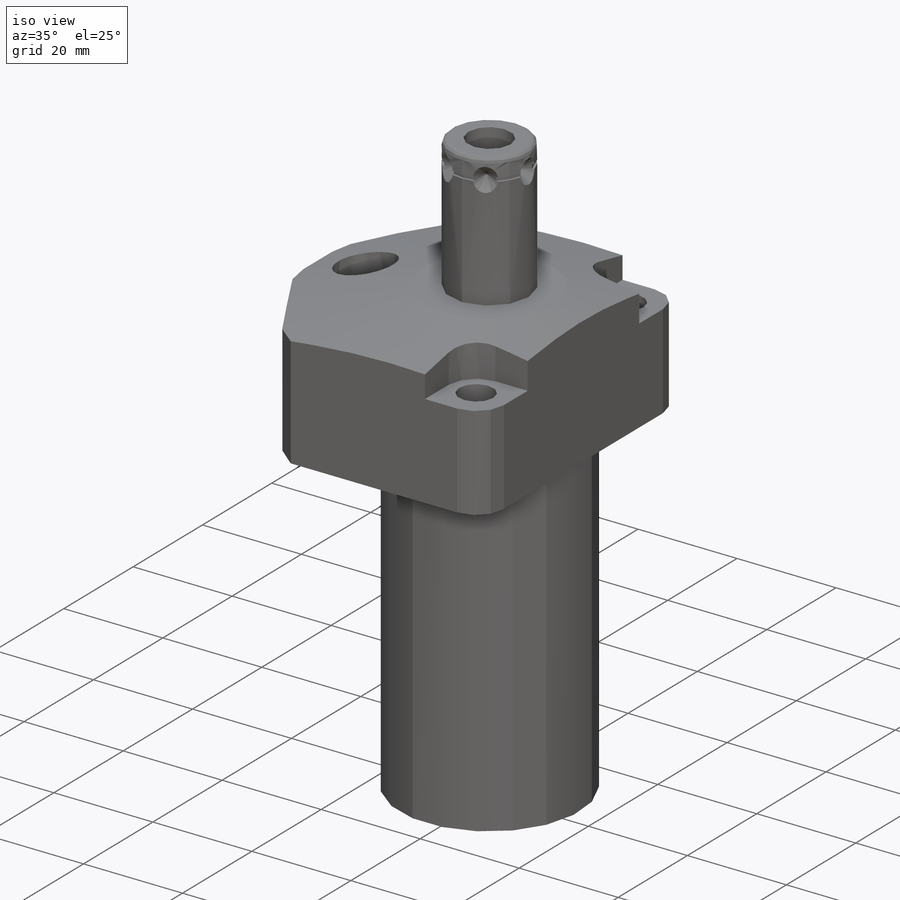
[diagram: iso view]
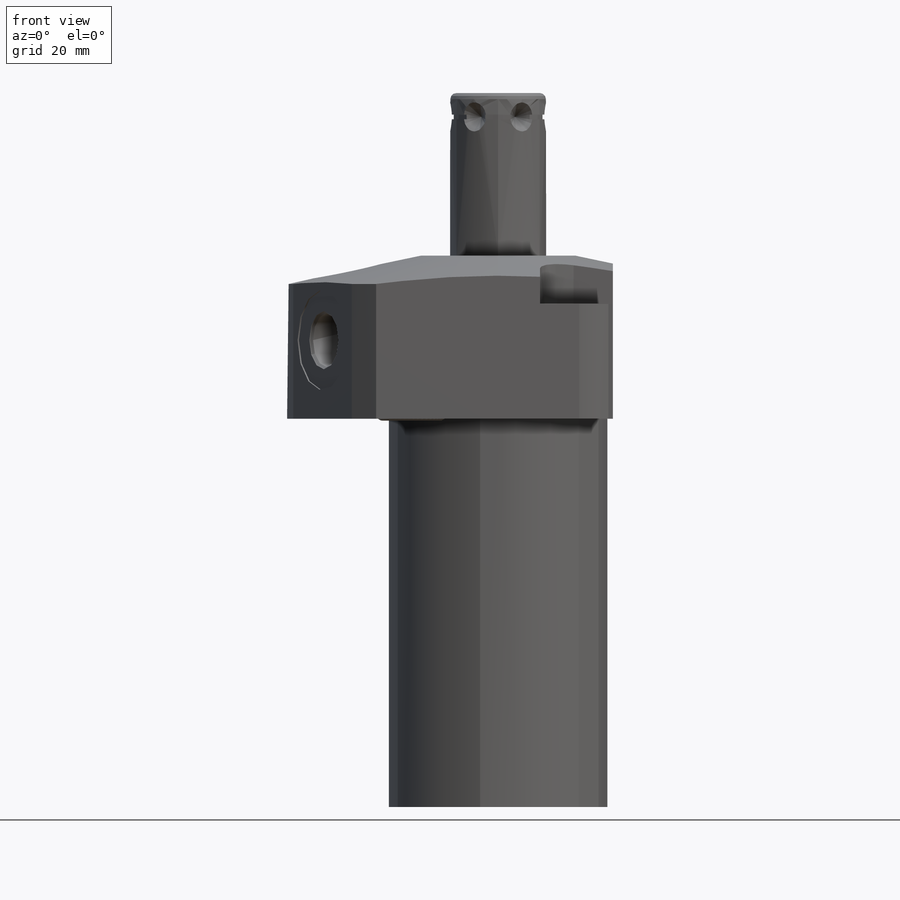
[diagram: front view]
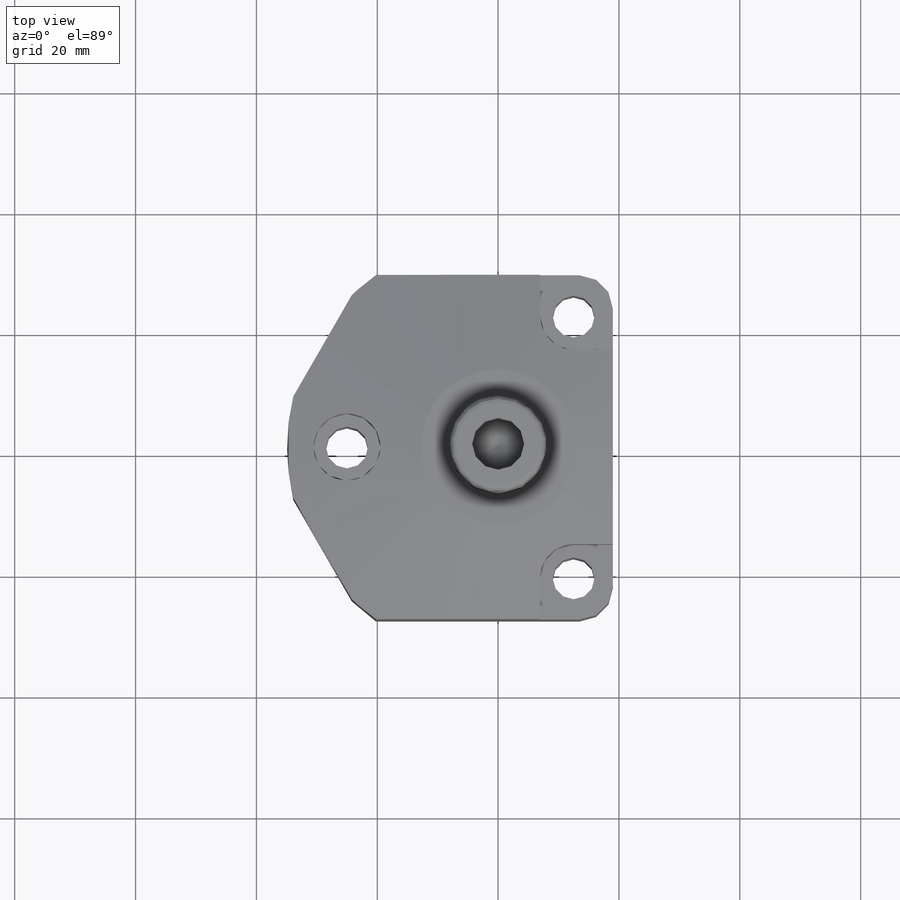
[diagram: top view]
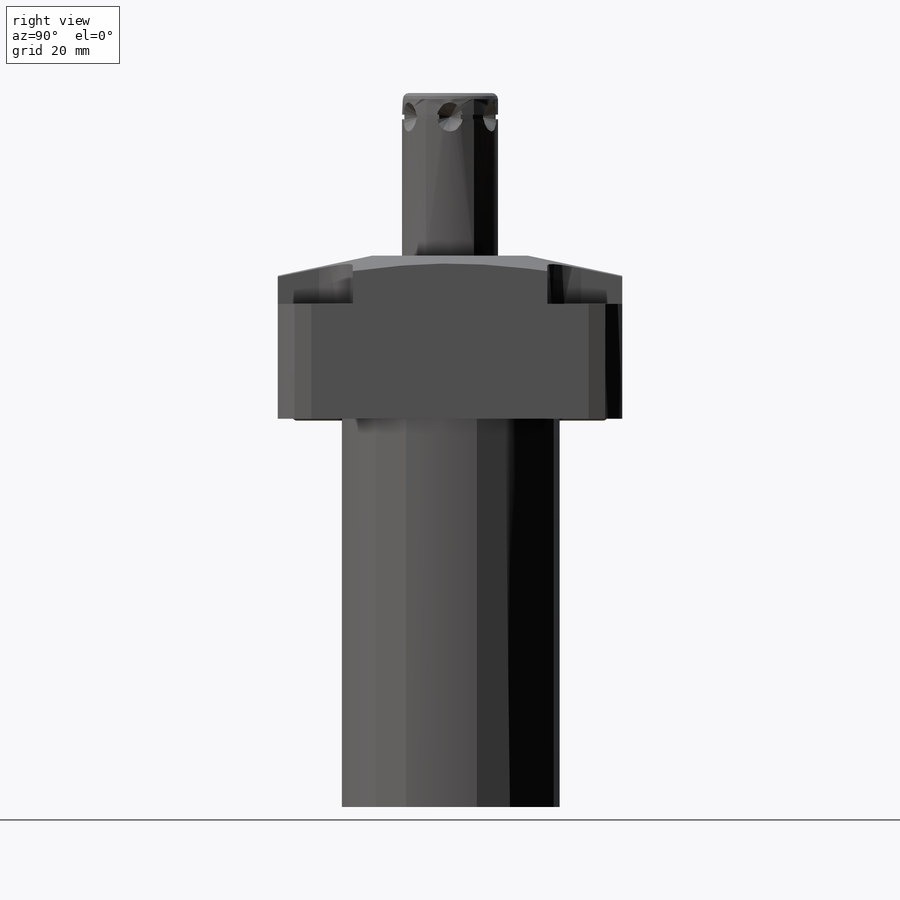
[diagram: right view]
SOLIDWORKS PART (.sldprt)
format: sldprt  version: not decoded by parser v0  size: 565,248 bytes
history: native  units: mm
features: sketch x18, cut_extrude x6, cut_revolve x6, revolve x3, plane x2, mirror x2, material x1, fillet x1, extrude x1, chamfer x1, hole x1, pattern_circular x1 (+13 scaffold rows collapsed)
feature tree (56):
  scaffold x13  (default folders/planes/origin — collapsed)
  material  "Alloy Steel"
  sketch  "S2D0002"  dims[c1.D1=69.85mm c1.D2=36.2712mm c1.D3=69.85mm c1.D4=43.8404mm c2.D1=91.2622mm c2.D4=64.262mm]
  revolve  "Revolve1"  Angle=360deg
  sketch  "S2D0001"  dims[D1=56.9976mm D2=0.0mm]
  cut_extrude  "Cut-Extrude1"  Depth=32.9946mm
  sketch  "Sketch3"  dims[c1.D3=125.0mm c1.D1=~101.75748mm c2.D1=30.0deg c2.D2=33.5534mm]
  cut_extrude  "Cut-Extrude2"  [1 undecoded]
  sketch  "Sketch4"  dims[D1=18.9992mm]
  cut_extrude  "Cut-Extrude3"  Depth=32.9946mm
  fillet  "Fillet1"  Radius=5.5626mm
  sketch  "Sketch5"  dims[c1.D3=4.9784mm c1.D1=10.0076mm c1.D2=12.4968mm c2.D3=21.6662mm]
  cut_extrude  "Cut-Extrude4"  Depth=8.001mm
  sketch  "S2D0003"  dims[c1.D1=25.654mm c1.D2=~70.494417mm c2.D2=12.0deg c2.D3=70.0mm]
  cut_revolve  "Cut-Revolve1"  Angle=360deg
  plane  "Plane20"  Offset=13.0048mm
  sketch  "Sketch7"  dims[c1.D1=10.5664mm c1.D2=8.8392mm c1.D3=~0.500639mm c2.D3=45.0deg c2.D4=0.254mm c2.D5=~0.481005mm c2.D6=9.6012mm c2.D7=16.51mm c2.D8=~0.129837mm c3.D8=78.0deg]
  cut_revolve  "Cut-Revolve2"  Angle=360deg
  plane  "Plane21"  Offset=20.4724mm
  sketch  "Sketch9"  dims[c1.D1=10.5664mm c1.D2=2.9972mm c1.D3=14.351mm c1.D4=2.4892mm c1.D5=6.5024mm c1.D6=11.4046mm c1.D7=1.4478mm c2.D1=7.5692mm]
  cut_revolve  "Cut-Revolve4"  Angle=360deg
  sketch  "Sketch11"  dims[D1=5.4864mm]
  extrude  "Extrude1"  Depth=2.9972mm
  sketch  "Sketch12"  dims[D1=2.4892mm D2=2.4892mm]
  cut_extrude  "Cut-Extrude5"  Depth=1.27mm
  chamfer  "Chamfer1"  Distance=0.254mm Angle=45deg
  mirror  "Mirror2"
  sketch  "Sketch16"  dims[D2=1.778mm D1=9.6266mm D3=0.88mm]
  revolve  "Revolve3"  Angle=360deg
  mirror  "Mirror3"
  sketch  "Sketch17"  dims[D2=1.016mm D1=15.875mm D3=53.912mm]
  revolve  "Revolve4"  Angle=360deg
  sketch  "Sketch18"  dims[c1.D1=15.24mm c1.D2=8.6106mm c1.D3=2.5273mm c2.D3=59.0deg]
  cut_revolve  "Cut-Revolve7"  Angle=360deg
  sketch  "Sketch20"  dims[c1.D1=3.9624mm c1.D2=1.5875mm c2.D2=45.0deg c2.D3=3.175mm c2.D4=~3.598393mm c3.D4=45.0deg c3.D2=4.826mm]
  cut_revolve  "Cut-Revolve8"  Angle=360deg
  sketch  "Sketch22"  dims[D1=0.762mm D2=0.381mm D3=~3.580994mm]
  cut_revolve  "Cut-Revolve6"  Angle=360deg
  hole  "Hole1"  Diameter=6.9088mm Depth=27.0002mm
  sketch  "Sketch24"  dims[D1=25.019mm]
  sketch  "Sketch23"  dims[Diameter=6.9088mm Depth=27.0002mm C-Bore Diameter=11.0998mm C-Bore Depth=8.001mm]
  sketch  "Sketch25"  dims[D1=22.733mm]
  cut_extrude  "Cut-Extrude7"  Depth=1.524mm
  pattern_circular  "CirPattern1"  Count=6 Angle=360deg
decode coverage: 37 of 40 modeling features carry decoded parameters
note: ~ marks probable driven/reference dimensions
note: 1 parameter value undecoded
note: suppression state not decoded; provenance and decode notes live in map.json
